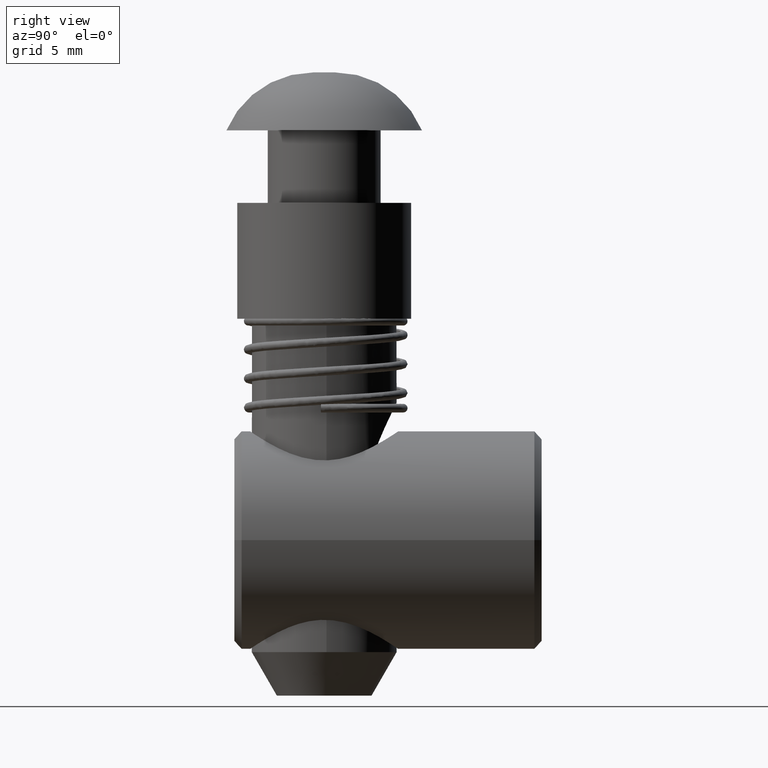
[diagram: clean part render]
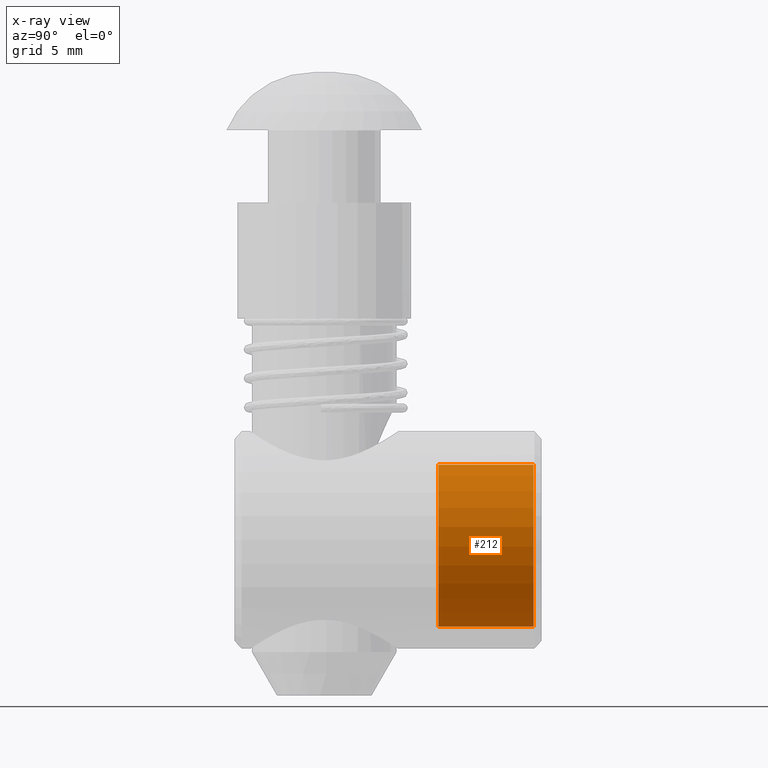
[diagram: x-ray — body ghosted, one internal face saturated and labeled with its STEP entity id]
A machine part, right view, then the same camera in x-ray: the body is ghosted and one INTERNAL B-rep face — a face not visible from any outside direction — is saturated and labeled: STEP entity #212.
In plain terms, the highlighted cylindrical surface (partial cylindrical patch) has radius 6 mm, axis along (-0, 1, -0).
Its self-contained STEP definition (entity closure, byte-faithful):
#212 = ADVANCED_FACE ( 'NONE', ( #3182 ), #3178, .T. ) ;
#348 = AXIS2_PLACEMENT_3D ( 'NONE', #2231, #2232, #2233 ) ;
#407 = AXIS2_PLACEMENT_3D ( 'NONE', #1383, #1384, #1385 ) ;
#408 = AXIS2_PLACEMENT_3D ( 'NONE', #1388, #1389, #1390 ) ;
#409 = AXIS2_PLACEMENT_3D ( 'NONE', #1393, #1394, #1395 ) ;
#410 = AXIS2_PLACEMENT_3D ( 'NONE', #1398, #1399, #1400 ) ;
#1383 = CARTESIAN_POINT ( 'NONE',  ( 0.0000000000000000000, 0.0000000000000000000, 0.1999999999999779700 ) ) ;
#1384 = DIRECTION ( 'NONE',  ( 0.0000000000000000000, 0.0000000000000000000, 1.000000000000000000 ) ) ;
#1385 = DIRECTION ( 'NONE',  ( 1.000000000000000000, 0.0000000000000000000, 3.672734859294646300E-015 ) ) ;
#1388 = CARTESIAN_POINT ( 'NONE',  ( 0.0000000000000000000, 0.0000000000000000000, 6.750000000000000000 ) ) ;
#1389 = DIRECTION ( 'NONE',  ( -0.0000000000000000000, -0.0000000000000000000, 1.000000000000000000 ) ) ;
#1390 = DIRECTION ( 'NONE',  ( -1.000000000000000000, 0.0000000000000000000, 0.0000000000000000000 ) ) ;
#1391 = CARTESIAN_POINT ( 'NONE',  ( 7.347880794884119700E-016, -6.000000000000000000, 6.750000000000000900 ) ) ;
#1392 = DIRECTION ( 'NONE',  ( 0.0000000000000000000, -7.228014483236695800E-017, -1.000000000000000000 ) ) ;
#1393 = CARTESIAN_POINT ( 'NONE',  ( 0.0000000000000000000, 0.0000000000000000000, 0.1999999999999779700 ) ) ;
#1394 = DIRECTION ( 'NONE',  ( 0.0000000000000000000, 0.0000000000000000000, 1.000000000000000000 ) ) ;
#1395 = DIRECTION ( 'NONE',  ( 1.000000000000000000, 0.0000000000000000000, 3.672734859294646300E-015 ) ) ;
#1396 = CARTESIAN_POINT ( 'NONE',  ( 0.0000000000000000000, 6.000000000000000000, 6.749999999999999100 ) ) ;
#1397 = DIRECTION ( 'NONE',  ( 0.0000000000000000000, -7.228014483236695800E-017, -1.000000000000000000 ) ) ;
#1398 = CARTESIAN_POINT ( 'NONE',  ( 0.0000000000000000000, 0.0000000000000000000, 6.750000000000000000 ) ) ;
#1399 = DIRECTION ( 'NONE',  ( -0.0000000000000000000, -0.0000000000000000000, 1.000000000000000000 ) ) ;
#1400 = DIRECTION ( 'NONE',  ( -1.000000000000000000, 0.0000000000000000000, 0.0000000000000000000 ) ) ;
#2034 = CARTESIAN_POINT ( 'NONE',  ( 0.0000000000000000000, 6.000000000000000000, 6.750000000000000000 ) ) ;
#2035 = CARTESIAN_POINT ( 'NONE',  ( 6.000000000000000000, 7.347880794884119700E-016, 6.750000000000000000 ) ) ;
#2039 = CARTESIAN_POINT ( 'NONE',  ( 7.347880794884119700E-016, -6.000000000000000000, 0.1999999999999779700 ) ) ;
#2044 = CARTESIAN_POINT ( 'NONE',  ( 7.347880794884119700E-016, -6.000000000000000000, 6.750000000000000000 ) ) ;
#2051 = CARTESIAN_POINT ( 'NONE',  ( 5.999999999999978700, 0.0000000000000000000, 0.1999999999999779700 ) ) ;
#2055 = CARTESIAN_POINT ( 'NONE',  ( 0.0000000000000000000, 6.000000000000000000, 0.1999999999999779700 ) ) ;
#2231 = CARTESIAN_POINT ( 'NONE',  ( 0.0000000000000000000, 0.0000000000000000000, 6.750000000000000000 ) ) ;
#2232 = DIRECTION ( 'NONE',  ( 0.0000000000000000000, -7.228014483236695800E-017, -1.000000000000000000 ) ) ;
#2233 = DIRECTION ( 'NONE',  ( 0.0000000000000000000, 1.000000000000000000, -1.445602896647339200E-016 ) ) ;
#2888 = EDGE_CURVE ( 'NONE', #3516, #3520, #3388, .T. ) ;
#2890 = EDGE_CURVE ( 'NONE', #3509, #3500, #3391, .T. ) ;
#2891 = EDGE_CURVE ( 'NONE', #3509, #3504, #3390, .T. ) ;
#2892 = EDGE_CURVE ( 'NONE', #3504, #3516, #3394, .T. ) ;
#2893 = EDGE_CURVE ( 'NONE', #3499, #3520, #3393, .T. ) ;
#2894 = EDGE_CURVE ( 'NONE', #3500, #3499, #3396, .T. ) ;
#3102 = EDGE_LOOP ( 'NONE', ( #3173, #3172, #3177, #3230, #3176, #3224 ) ) ;
#3172 = ORIENTED_EDGE ( 'NONE', *, *, #2891, .T. ) ;
#3173 = ORIENTED_EDGE ( 'NONE', *, *, #2890, .F. ) ;
#3176 = ORIENTED_EDGE ( 'NONE', *, *, #2893, .F. ) ;
#3177 = ORIENTED_EDGE ( 'NONE', *, *, #2892, .T. ) ;
#3178 = CYLINDRICAL_SURFACE ( 'NONE', #348, 6.000000000000000000 ) ;
#3182 = FACE_OUTER_BOUND ( 'NONE', #3102, .T. ) ;
#3224 = ORIENTED_EDGE ( 'NONE', *, *, #2894, .F. ) ;
#3230 = ORIENTED_EDGE ( 'NONE', *, *, #2888, .T. ) ;
#3388 = CIRCLE ( 'NONE', #407, 6.000000000000000000 ) ;
#3390 = LINE ( 'NONE', #1391, #3392 ) ;
#3391 = CIRCLE ( 'NONE', #408, 6.000000000000000000 ) ;
#3392 = VECTOR ( 'NONE', #1392, 1000.000000000000000 ) ;
#3393 = LINE ( 'NONE', #1396, #3395 ) ;
#3394 = CIRCLE ( 'NONE', #409, 6.000000000000000000 ) ;
#3395 = VECTOR ( 'NONE', #1397, 1000.000000000000000 ) ;
#3396 = CIRCLE ( 'NONE', #410, 6.000000000000000000 ) ;
#3499 = VERTEX_POINT ( 'NONE', #2034 ) ;
#3500 = VERTEX_POINT ( 'NONE', #2035 ) ;
#3504 = VERTEX_POINT ( 'NONE', #2039 ) ;
#3509 = VERTEX_POINT ( 'NONE', #2044 ) ;
#3516 = VERTEX_POINT ( 'NONE', #2051 ) ;
#3520 = VERTEX_POINT ( 'NONE', #2055 ) ;